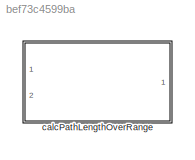
MODEL slx_bef73c4599ba
KIND library
CONFIG AbsTol = auto
CONFIG EnableMultiTasking = off
CONFIG FixedStep = auto
CONFIG MaxStep = auto
CONFIG MinStep = auto
CONFIG RelTol = 1e-3
CONFIG SampleTimeConstraint = Unconstrained
CONFIG SolverName = VariableStepAuto
CONFIG StartTime = 0.0
CONFIG StopTime = 10.0
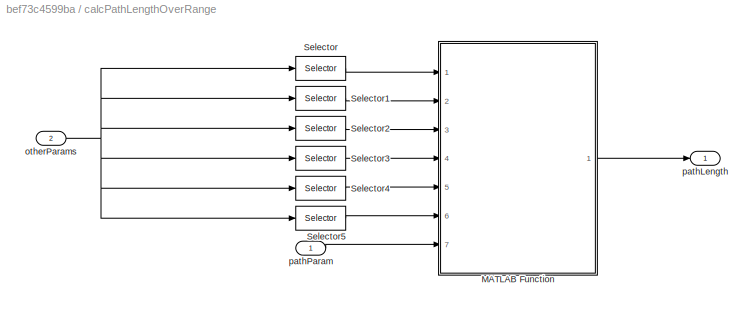
BLOCK [SubSystem] calcPathLengthOverRange
  Ports = [2, 1]
  RequestExecContextInheritance = off
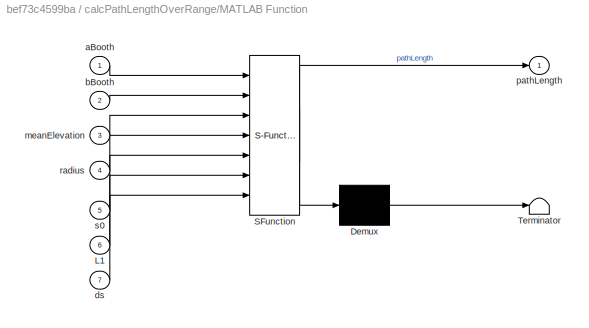
BLOCK [SubSystem] calcPathLengthOverRange/MATLAB Function
  ErrorFcn = Stateflow.Translate.translate
  PermitHierarchicalResolution = ExplicitOnly
  Ports = [7, 1]
  RequestExecContextInheritance = off
  SFBlockType = MATLAB Function
  TreatAsAtomicUnit = on
BLOCK [Demux] calcPathLengthOverRange/MATLAB Function/ Demux 
  Outputs = 1
  Ports = [1, 1]
BLOCK [S-Function] calcPathLengthOverRange/MATLAB Function/ SFunction 
  EnableBusSupport = off
  FunctionName = sf_sfun
  PortCounts = [7 2]
  Ports = [7, 2]
  SFcnIsStateOwnerBlock = off
  SFunctionDeploymentMode = off
  Tag = Stateflow S-Function 86
BLOCK [Terminator] calcPathLengthOverRange/MATLAB Function/ Terminator 
BLOCK [Inport] calcPathLengthOverRange/MATLAB Function/L1
  Port = 6
BLOCK [Inport] calcPathLengthOverRange/MATLAB Function/aBooth
BLOCK [Inport] calcPathLengthOverRange/MATLAB Function/bBooth
  Port = 2
BLOCK [Inport] calcPathLengthOverRange/MATLAB Function/ds
  Port = 7
BLOCK [Inport] calcPathLengthOverRange/MATLAB Function/meanElevation
  Port = 3
BLOCK [Outport] calcPathLengthOverRange/MATLAB Function/pathLength
BLOCK [Inport] calcPathLengthOverRange/MATLAB Function/radius
  Port = 4
BLOCK [Inport] calcPathLengthOverRange/MATLAB Function/s0
  Port = 5
BLOCK [Selector] calcPathLengthOverRange/Selector
  IndexOptions = Index vector (dialog)
  Indices = 1
  InputPortWidth = 6
  OutputSizes = 1
  Ports = [1, 1]
BLOCK [Selector] calcPathLengthOverRange/Selector1
  IndexOptions = Index vector (dialog)
  Indices = 2
  InputPortWidth = 6
  OutputSizes = 1
  Ports = [1, 1]
BLOCK [Selector] calcPathLengthOverRange/Selector2
  IndexOptions = Index vector (dialog)
  Indices = 3
  InputPortWidth = 6
  OutputSizes = 1
  Ports = [1, 1]
BLOCK [Selector] calcPathLengthOverRange/Selector3
  IndexOptions = Index vector (dialog)
  Indices = 4
  InputPortWidth = 6
  OutputSizes = 1
  Ports = [1, 1]
BLOCK [Selector] calcPathLengthOverRange/Selector4
  IndexOptions = Index vector (dialog)
  Indices = 5
  InputPortWidth = 6
  OutputSizes = 1
  Ports = [1, 1]
BLOCK [Selector] calcPathLengthOverRange/Selector5
  IndexOptions = Index vector (dialog)
  Indices = 6
  InputPortWidth = 6
  OutputSizes = 1
  Ports = [1, 1]
BLOCK [Inport] calcPathLengthOverRange/otherParams
  Port = 2
BLOCK [Outport] calcPathLengthOverRange/pathLength
BLOCK [Inport] calcPathLengthOverRange/pathParam
LINE calcPathLengthOverRange/MATLAB Function:1 -> calcPathLengthOverRange/pathLength:1
LINE calcPathLengthOverRange/Selector1:1 -> calcPathLengthOverRange/MATLAB Function:2
LINE calcPathLengthOverRange/Selector2:1 -> calcPathLengthOverRange/MATLAB Function:3
LINE calcPathLengthOverRange/Selector3:1 -> calcPathLengthOverRange/MATLAB Function:4
LINE calcPathLengthOverRange/Selector4:1 -> calcPathLengthOverRange/MATLAB Function:5
LINE calcPathLengthOverRange/Selector5:1 -> calcPathLengthOverRange/MATLAB Function:6
LINE calcPathLengthOverRange/Selector:1 -> calcPathLengthOverRange/MATLAB Function:1
NET calcPathLengthOverRange/otherParams:1 -> calcPathLengthOverRange/Selector1:1, calcPathLengthOverRange/Selector2:1, calcPathLengthOverRange/Selector3:1, calcPathLengthOverRange/Selector4:1, calcPathLengthOverRange/Selector5:1, calcPathLengthOverRange/Selector:1
LINE calcPathLengthOverRange/pathParam:1 -> calcPathLengthOverRange/MATLAB Function:7
note: NET lines group one-source signal fan-out (src -> all destinations, sorted); 1:1 wires keep LINE
CHART calcPathLengthOverRange/MATLAB Function states=1 transitions=1
  STATE_LABEL 'eML_blk_kernel()'
  STATE_LABEL 'SCRIPT:\nfunction pathLength = calcTargetDistance(aBooth,bBooth,meanElevation,radius,s0,L1,ds)\n\npathLength = calcTargetDistance(aBooth,bBooth,meanElevation,radius,s0,L1,ds);\n\nend'
CHART  states=0 transitions=0
